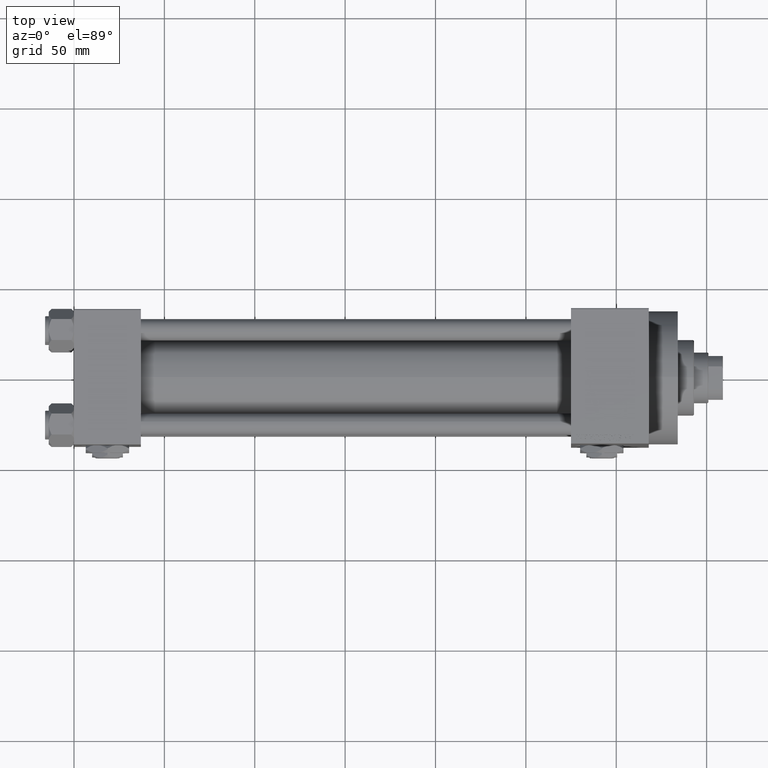
[diagram: clean part render]
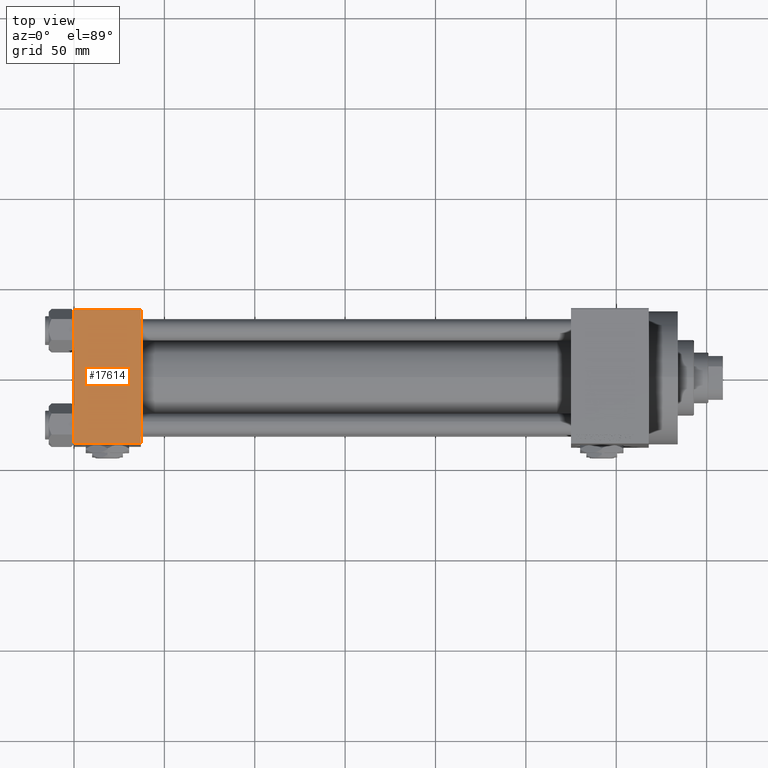
[diagram: same view with one face highlighted and labeled with its STEP entity id]
A machine part, top view. The second image highlights one B-rep face of the part: STEP entity #17614.
In plain terms, the highlighted planar face has unit normal (0, 0, -1).
Its self-contained STEP definition (entity closure, byte-faithful):
#1118 = CARTESIAN_POINT ( 'NONE',  ( 0.000000000000000000, -37.00000000000000711, 37.49999999999999289 ) ) ;
#2778 = EDGE_CURVE ( 'NONE', #32806, #25525, #45249, .T. ) ;
#4091 = DIRECTION ( 'NONE',  ( 0.000000000000000000, -1.000000000000000000, -9.251858538542971581E-17 ) ) ;
#5663 = LINE ( 'NONE', #25385, #39329 ) ;
#5814 = DIRECTION ( 'NONE',  ( 1.000000000000000000, 0.000000000000000000, 0.000000000000000000 ) ) ;
#7179 = EDGE_CURVE ( 'NONE', #25754, #32806, #38617, .T. ) ;
#11062 = VERTEX_POINT ( 'NONE', #26641 ) ;
#13286 = CARTESIAN_POINT ( 'NONE',  ( 0.000000000000000000, 36.99999999999999289, 37.50000000000000000 ) ) ;
#15131 = LINE ( 'NONE', #15373, #37555 ) ;
#15373 = CARTESIAN_POINT ( 'NONE',  ( 37.00000000000000000, 37.49999999999999289, 37.50000000000000000 ) ) ;
#15738 = ORIENTED_EDGE ( 'NONE', *, *, #7179, .T. ) ;
#16755 = PLANE ( 'NONE',  #33822 ) ;
#17614 = ADVANCED_FACE ( 'NONE', ( #35964 ), #16755, .F. ) ;
#19071 = ORIENTED_EDGE ( 'NONE', *, *, #2778, .T. ) ;
#19130 = DIRECTION ( 'NONE',  ( 0.000000000000000000, -1.000000000000000000, -9.251858538542971581E-17 ) ) ;
#20574 = DIRECTION ( 'NONE',  ( 0.000000000000000000, 1.000000000000000000, 9.251858538542971581E-17 ) ) ;
#21095 = DIRECTION ( 'NONE',  ( 0.000000000000000000, 9.251858538542971581E-17, -1.000000000000000000 ) ) ;
#21675 = CARTESIAN_POINT ( 'NONE',  ( 37.00000000000000000, -37.00000000000000711, 37.49999999999999289 ) ) ;
#21779 = DIRECTION ( 'NONE',  ( -1.000000000000000000, 0.000000000000000000, 0.000000000000000000 ) ) ;
#25385 = CARTESIAN_POINT ( 'NONE',  ( 0.000000000000000000, 36.99999999999999289, 37.50000000000000000 ) ) ;
#25525 = VERTEX_POINT ( 'NONE', #25898 ) ;
#25754 = VERTEX_POINT ( 'NONE', #13286 ) ;
#25898 = CARTESIAN_POINT ( 'NONE',  ( 37.00000000000000000, -37.00000000000000711, 37.49999999999999289 ) ) ;
#26641 = CARTESIAN_POINT ( 'NONE',  ( 37.00000000000000000, 36.99999999999999289, 37.50000000000000000 ) ) ;
#26712 = EDGE_CURVE ( 'NONE', #11062, #25525, #15131, .T. ) ;
#27756 = VECTOR ( 'NONE', #19130, 1000.000000000000000 ) ;
#32806 = VERTEX_POINT ( 'NONE', #1118 ) ;
#33647 = EDGE_CURVE ( 'NONE', #11062, #25754, #5663, .T. ) ;
#33822 = AXIS2_PLACEMENT_3D ( 'NONE', #48250, #21095, #20574 ) ;
#35009 = CARTESIAN_POINT ( 'NONE',  ( 0.000000000000000000, 37.49999999999999289, 37.50000000000000000 ) ) ;
#35964 = FACE_OUTER_BOUND ( 'NONE', #39761, .T. ) ;
#36559 = ORIENTED_EDGE ( 'NONE', *, *, #26712, .F. ) ;
#37555 = VECTOR ( 'NONE', #4091, 1000.000000000000000 ) ;
#38617 = LINE ( 'NONE', #35009, #27756 ) ;
#39329 = VECTOR ( 'NONE', #21779, 1000.000000000000000 ) ;
#39761 = EDGE_LOOP ( 'NONE', ( #15738, #19071, #36559, #43329 ) ) ;
#43158 = VECTOR ( 'NONE', #5814, 1000.000000000000000 ) ;
#43329 = ORIENTED_EDGE ( 'NONE', *, *, #33647, .T. ) ;
#45249 = LINE ( 'NONE', #21675, #43158 ) ;
#48250 = CARTESIAN_POINT ( 'NONE',  ( 37.00000000000000000, 37.49999999999999289, 37.50000000000000000 ) ) ;